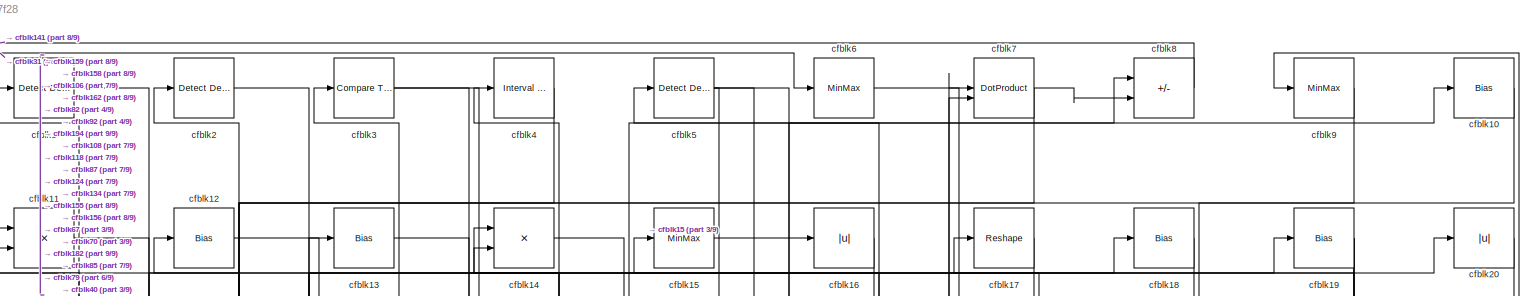
[diagram: root canvas - part 1/9, full width, top band]
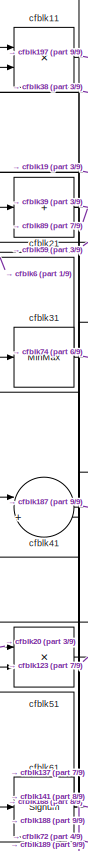
[diagram: root canvas - part 2/9, top left region]
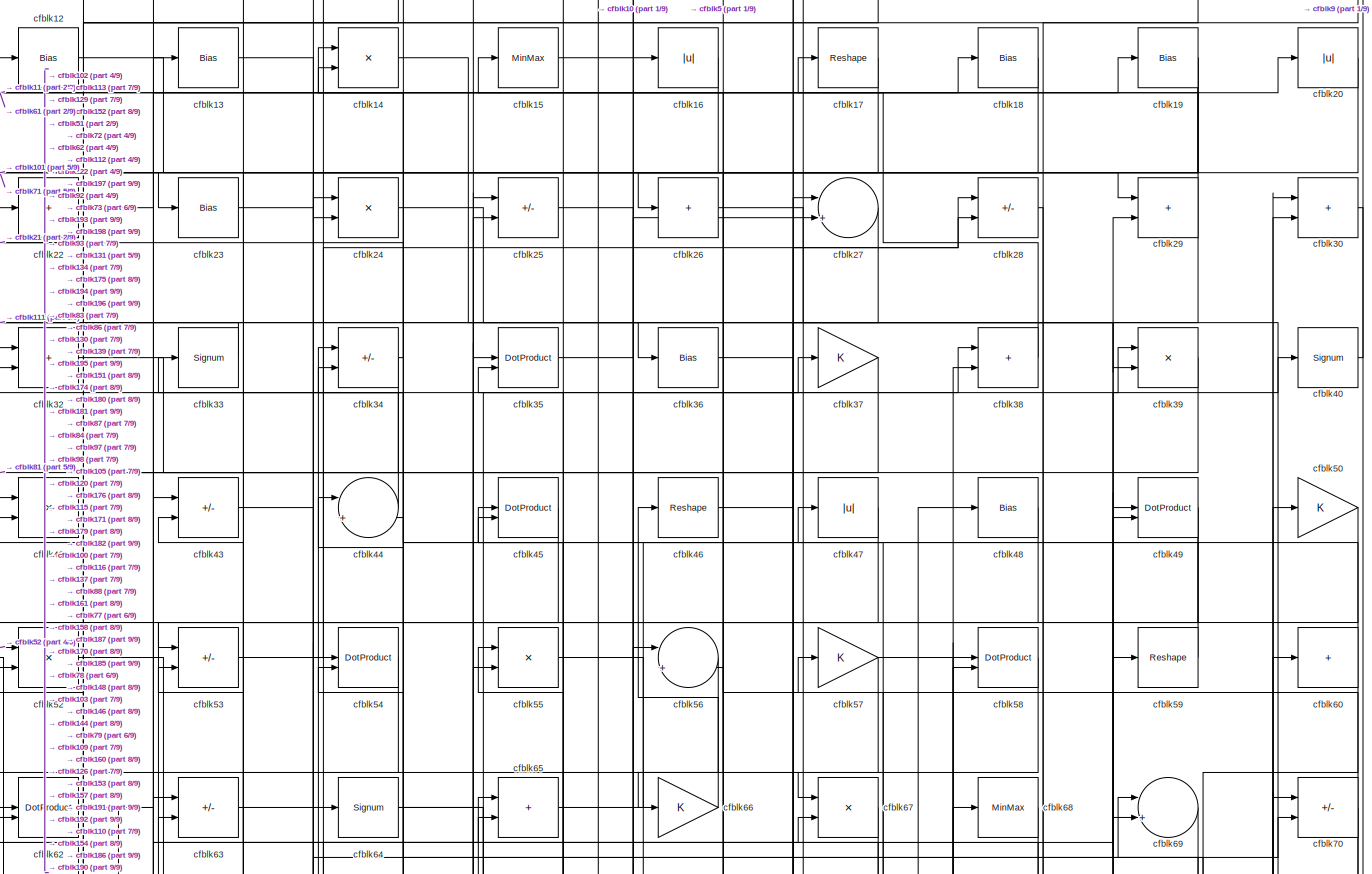
[diagram: root canvas - part 3/9, full width, top band]
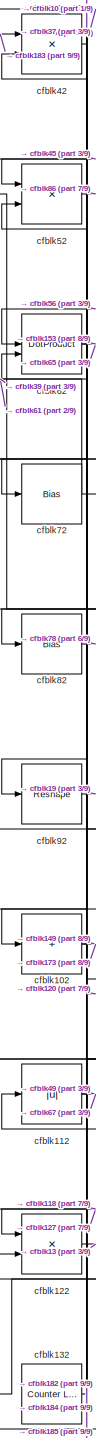
[diagram: root canvas - part 4/9, middle left region]
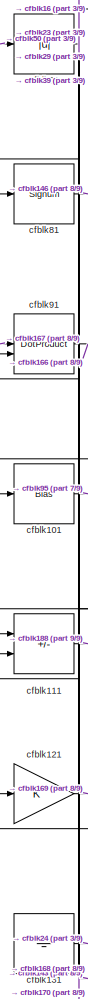
[diagram: root canvas - part 5/9, middle left region]
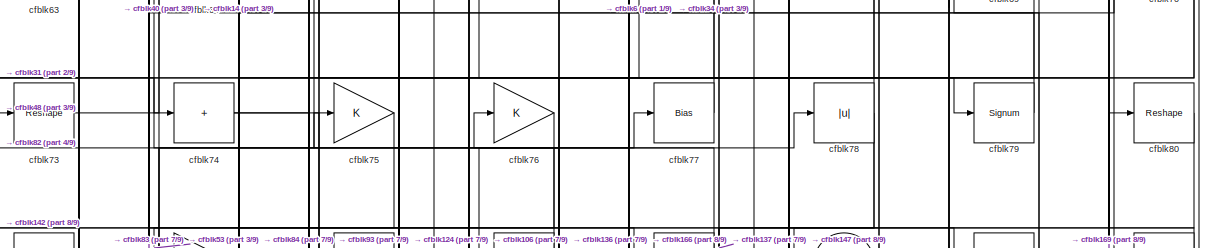
[diagram: root canvas - part 6/9, full width, middle band]
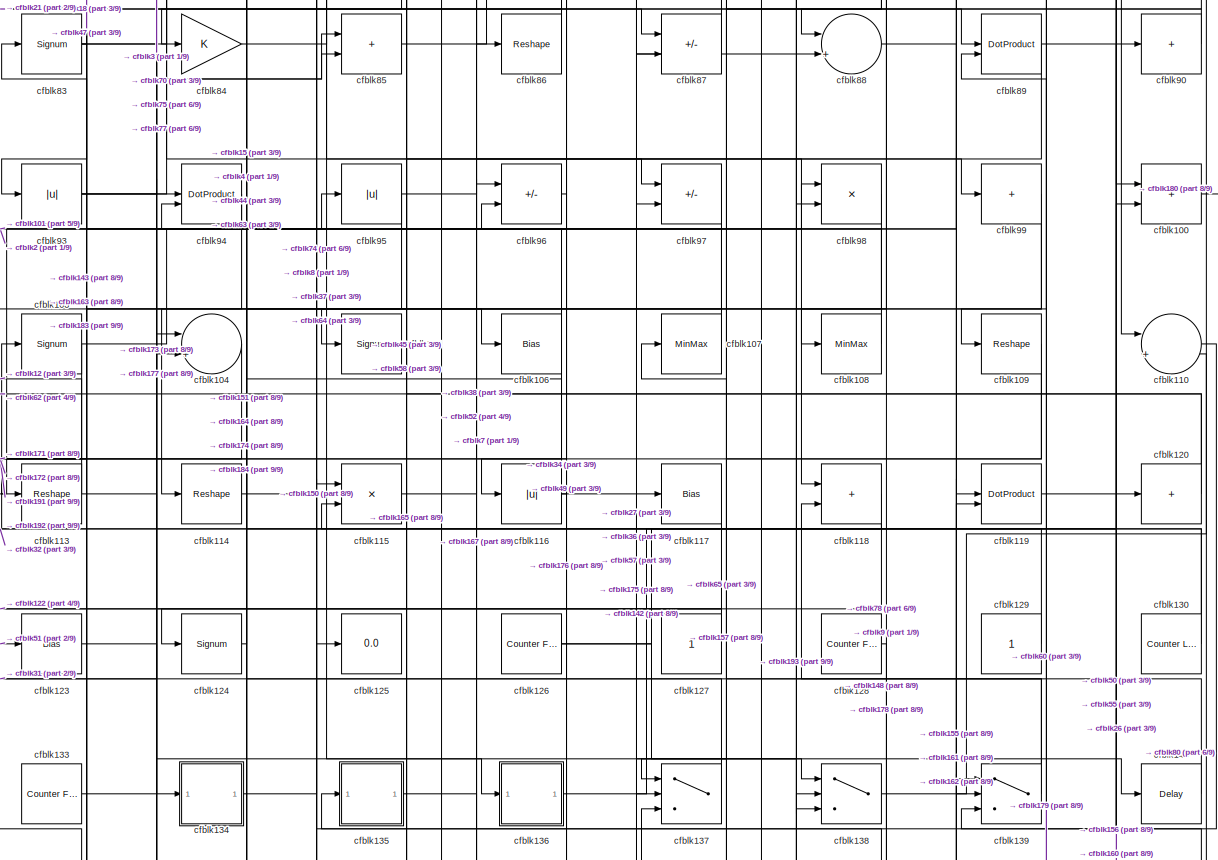
[diagram: root canvas - part 7/9, full width, middle band]
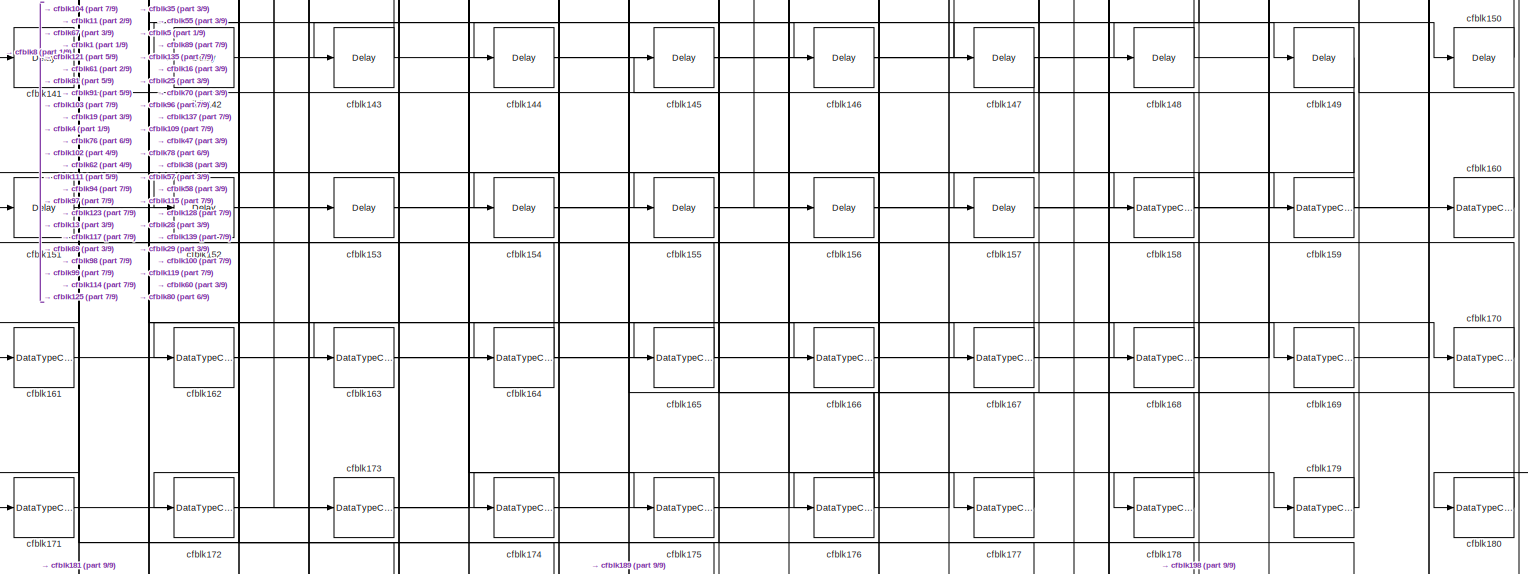
[diagram: root canvas - part 8/9, full width, bottom band]
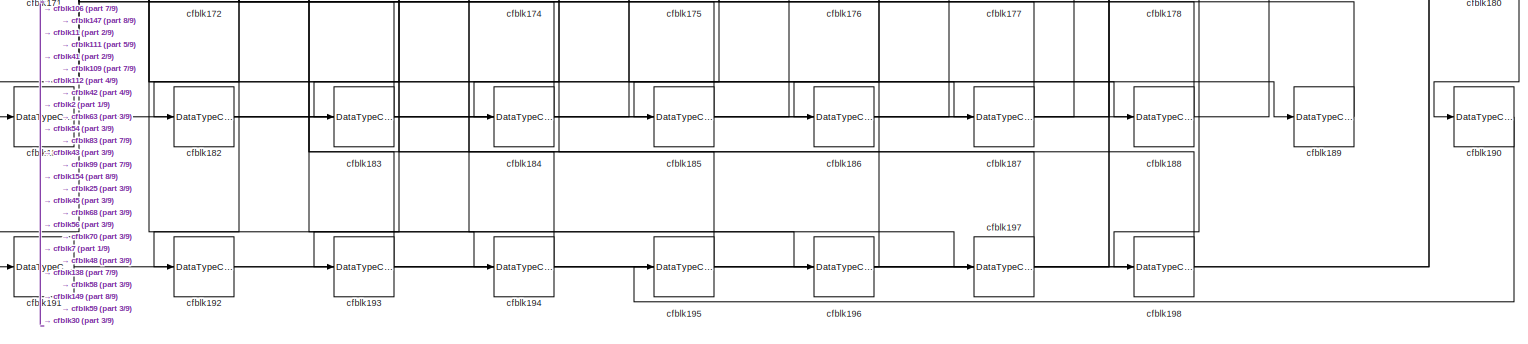
[diagram: root canvas - part 9/9, full width, bottom band]
MODEL slx_633baff17f28
KIND model
CONFIG AbsTol = auto
CONFIG EnableMultiTasking = off
CONFIG FixedStep = auto
CONFIG MaxStep = auto
CONFIG MinStep = auto
CONFIG RelTol = 1e-3
CONFIG SampleTimeConstraint = Unconstrained
CONFIG SolverName = VariableStepAuto
CONFIG StartTime = 0.0
CONFIG StopTime = 10.0
BLOCK [Reference] cfblk1  REF=simulink/Logic and Bit
Operations/Detect
Decrease
  LibrarySourceBlock = hdlsllib/Logic and Bit\nOperations/Detect\nDecrease
  SourceBlock = simulink/Logic and Bit\nOperations/Detect\nDecrease
  SourceType = Detect Decrease
BLOCK [Bias] cfblk10
  Bias = 0.0
  SaturateOnIntegerOverflow = off
BLOCK [Sum] cfblk100
  IconShape = rectangular
BLOCK [Bias] cfblk101
  Bias = 0.0
  SaturateOnIntegerOverflow = off
BLOCK [Sum] cfblk102
  IconShape = rectangular
  Inputs = +
BLOCK [Signum] cfblk103
BLOCK [Sum] cfblk104
  Inputs = |++
BLOCK [Signum] cfblk105
BLOCK [Bias] cfblk106
  Bias = 0.0
  SaturateOnIntegerOverflow = off
BLOCK [MinMax] cfblk107
BLOCK [MinMax] cfblk108
BLOCK [Reshape] cfblk109
BLOCK [Product] cfblk11
  Inputs = */
  RndMeth = Zero
  SaturateOnIntegerOverflow = on
BLOCK [Sum] cfblk110
  Inputs = |++
BLOCK [Sum] cfblk111
  IconShape = rectangular
  Inputs = +-
BLOCK [Abs] cfblk112
  SaturateOnIntegerOverflow = off
BLOCK [Reshape] cfblk113
BLOCK [Reshape] cfblk114
BLOCK [Product] cfblk115
  Inputs = */
  RndMeth = Zero
  SaturateOnIntegerOverflow = on
BLOCK [Abs] cfblk116
  SaturateOnIntegerOverflow = off
BLOCK [Bias] cfblk117
  Bias = 0.0
  SaturateOnIntegerOverflow = off
BLOCK [Sum] cfblk118
  IconShape = rectangular
BLOCK [DotProduct] cfblk119
  OutDataTypeStr = Inherit: Inherit via internal rule
BLOCK [Bias] cfblk12
  Bias = 0.0
  SaturateOnIntegerOverflow = off
BLOCK [Sum] cfblk120
  IconShape = rectangular
  Inputs = +
BLOCK [Gain] cfblk121
BLOCK [Product] cfblk122
  Inputs = */
  RndMeth = Zero
  SaturateOnIntegerOverflow = on
BLOCK [Bias] cfblk123
  Bias = 0.0
  SaturateOnIntegerOverflow = off
BLOCK [Signum] cfblk124
BLOCK [Display] cfblk125
  Decimation = 1
BLOCK [Reference] cfblk126  REF=hdlsllib/Sources/Counter
Free-Running
  SourceBlock = hdlsllib/Sources/Counter\nFree-Running
  SourceType = Counter Free-Running
BLOCK [Constant] cfblk127
  SampleTime = -1
BLOCK [Reference] cfblk128  REF=hdlsllib/Sources/Counter
Free-Running
  SourceBlock = hdlsllib/Sources/Counter\nFree-Running
  SourceType = Counter Free-Running
BLOCK [Constant] cfblk129
  SampleTime = -1
BLOCK [Bias] cfblk13
  Bias = 0.0
  SaturateOnIntegerOverflow = off
BLOCK [Reference] cfblk130  REF=hdlsllib/Sources/Counter
Limited
  SourceBlock = hdlsllib/Sources/Counter\nLimited
  SourceType = Counter Limited
BLOCK [Ground] cfblk131
BLOCK [Reference] cfblk132  REF=hdlsllib/Sources/Counter
Limited
  SourceBlock = hdlsllib/Sources/Counter\nLimited
  SourceType = Counter Limited
BLOCK [Reference] cfblk133  REF=hdlsllib/Sources/Counter
Free-Running
  SourceBlock = hdlsllib/Sources/Counter\nFree-Running
  SourceType = Counter Free-Running
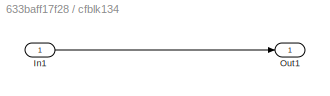
BLOCK [SubSystem] cfblk134
  LibrarySourceBlock = hdlsllib/Ports &\nSubsystems/Subsystem
BLOCK [Inport] cfblk134/In1
BLOCK [Outport] cfblk134/Out1
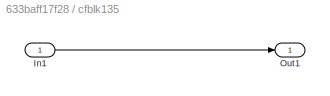
BLOCK [SubSystem] cfblk135
  LibrarySourceBlock = hdlsllib/Ports &\nSubsystems/Subsystem
BLOCK [Inport] cfblk135/In1
BLOCK [Outport] cfblk135/Out1
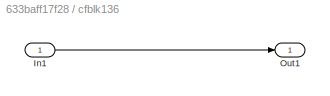
BLOCK [SubSystem] cfblk136
  LibrarySourceBlock = hdlsllib/Ports &\nSubsystems/Subsystem
BLOCK [Inport] cfblk136/In1
BLOCK [Outport] cfblk136/Out1
BLOCK [Switch] cfblk137
  InputSameDT = off
  SaturateOnIntegerOverflow = off
BLOCK [Switch] cfblk138
  InputSameDT = off
  SaturateOnIntegerOverflow = off
BLOCK [Switch] cfblk139
  InputSameDT = off
  SaturateOnIntegerOverflow = off
BLOCK [Product] cfblk14
  Inputs = */
  RndMeth = Zero
  SaturateOnIntegerOverflow = on
BLOCK [Delay] cfblk140
  InputPortMap = u0
  SampleTime = 1
BLOCK [Delay] cfblk141
  InputPortMap = u0
  SampleTime = 1
BLOCK [Delay] cfblk142
  InputPortMap = u0
  SampleTime = 1
BLOCK [Delay] cfblk143
  InputPortMap = u0
  SampleTime = 1
BLOCK [Delay] cfblk144
  InputPortMap = u0
  SampleTime = 1
BLOCK [Delay] cfblk145
  InputPortMap = u0
  SampleTime = 1
BLOCK [Delay] cfblk146
  InputPortMap = u0
  SampleTime = 1
BLOCK [Delay] cfblk147
  InputPortMap = u0
  SampleTime = 1
BLOCK [Delay] cfblk148
  InputPortMap = u0
  SampleTime = 1
BLOCK [Delay] cfblk149
  InputPortMap = u0
  SampleTime = 1
BLOCK [MinMax] cfblk15
BLOCK [Delay] cfblk150
  InputPortMap = u0
  SampleTime = 1
BLOCK [Delay] cfblk151
  InputPortMap = u0
  SampleTime = 1
BLOCK [Delay] cfblk152
  InputPortMap = u0
  SampleTime = 1
BLOCK [Delay] cfblk153
  InputPortMap = u0
  SampleTime = 1
BLOCK [Delay] cfblk154
  InputPortMap = u0
  SampleTime = 1
BLOCK [Delay] cfblk155
  InputPortMap = u0
  SampleTime = 1
BLOCK [Delay] cfblk156
  InputPortMap = u0
  SampleTime = 1
BLOCK [Delay] cfblk157
  InputPortMap = u0
  SampleTime = 1
BLOCK [DataTypeConversion] cfblk158
  OutDataTypeStr = uint8
  RndMeth = Floor
  SaturateOnIntegerOverflow = off
BLOCK [DataTypeConversion] cfblk159
  OutDataTypeStr = uint8
  RndMeth = Floor
  SaturateOnIntegerOverflow = off
BLOCK [Abs] cfblk16
  SaturateOnIntegerOverflow = off
BLOCK [DataTypeConversion] cfblk160
  OutDataTypeStr = uint8
  RndMeth = Floor
  SaturateOnIntegerOverflow = off
BLOCK [DataTypeConversion] cfblk161
  OutDataTypeStr = uint8
  RndMeth = Floor
  SaturateOnIntegerOverflow = off
BLOCK [DataTypeConversion] cfblk162
  OutDataTypeStr = uint8
  RndMeth = Floor
  SaturateOnIntegerOverflow = off
BLOCK [DataTypeConversion] cfblk163
  OutDataTypeStr = uint8
  RndMeth = Floor
  SaturateOnIntegerOverflow = off
BLOCK [DataTypeConversion] cfblk164
  OutDataTypeStr = uint8
  RndMeth = Floor
  SaturateOnIntegerOverflow = off
BLOCK [DataTypeConversion] cfblk165
  OutDataTypeStr = uint8
  RndMeth = Floor
  SaturateOnIntegerOverflow = off
BLOCK [DataTypeConversion] cfblk166
  OutDataTypeStr = uint8
  RndMeth = Floor
  SaturateOnIntegerOverflow = off
BLOCK [DataTypeConversion] cfblk167
  OutDataTypeStr = uint8
  RndMeth = Floor
  SaturateOnIntegerOverflow = off
BLOCK [DataTypeConversion] cfblk168
  OutDataTypeStr = uint8
  RndMeth = Floor
  SaturateOnIntegerOverflow = off
BLOCK [DataTypeConversion] cfblk169
  OutDataTypeStr = uint8
  RndMeth = Floor
  SaturateOnIntegerOverflow = off
BLOCK [Reshape] cfblk17
BLOCK [DataTypeConversion] cfblk170
  OutDataTypeStr = uint8
  RndMeth = Floor
  SaturateOnIntegerOverflow = off
BLOCK [DataTypeConversion] cfblk171
  OutDataTypeStr = uint8
  RndMeth = Floor
  SaturateOnIntegerOverflow = off
BLOCK [DataTypeConversion] cfblk172
  OutDataTypeStr = uint8
  RndMeth = Floor
  SaturateOnIntegerOverflow = off
BLOCK [DataTypeConversion] cfblk173
  OutDataTypeStr = uint8
  RndMeth = Floor
  SaturateOnIntegerOverflow = off
BLOCK [DataTypeConversion] cfblk174
  OutDataTypeStr = uint8
  RndMeth = Floor
  SaturateOnIntegerOverflow = off
BLOCK [DataTypeConversion] cfblk175
  OutDataTypeStr = uint8
  RndMeth = Floor
  SaturateOnIntegerOverflow = off
BLOCK [DataTypeConversion] cfblk176
  RndMeth = Floor
  SaturateOnIntegerOverflow = off
BLOCK [DataTypeConversion] cfblk177
  OutDataTypeStr = uint8
  RndMeth = Floor
  SaturateOnIntegerOverflow = off
BLOCK [DataTypeConversion] cfblk178
  OutDataTypeStr = uint8
  RndMeth = Floor
  SaturateOnIntegerOverflow = off
BLOCK [DataTypeConversion] cfblk179
  RndMeth = Floor
  SaturateOnIntegerOverflow = off
BLOCK [Bias] cfblk18
  Bias = 0.0
  SaturateOnIntegerOverflow = off
BLOCK [DataTypeConversion] cfblk180
  OutDataTypeStr = uint8
  RndMeth = Floor
  SaturateOnIntegerOverflow = off
BLOCK [DataTypeConversion] cfblk181
  OutDataTypeStr = uint8
  RndMeth = Floor
  SaturateOnIntegerOverflow = off
BLOCK [DataTypeConversion] cfblk182
  RndMeth = Floor
  SaturateOnIntegerOverflow = off
BLOCK [DataTypeConversion] cfblk183
  OutDataTypeStr = uint8
  RndMeth = Floor
  SaturateOnIntegerOverflow = off
BLOCK [DataTypeConversion] cfblk184
  OutDataTypeStr = uint8
  RndMeth = Floor
  SaturateOnIntegerOverflow = off
BLOCK [DataTypeConversion] cfblk185
  RndMeth = Floor
  SaturateOnIntegerOverflow = off
BLOCK [DataTypeConversion] cfblk186
  OutDataTypeStr = uint8
  RndMeth = Floor
  SaturateOnIntegerOverflow = off
BLOCK [DataTypeConversion] cfblk187
  RndMeth = Floor
  SaturateOnIntegerOverflow = off
BLOCK [DataTypeConversion] cfblk188
  OutDataTypeStr = uint8
  RndMeth = Floor
  SaturateOnIntegerOverflow = off
BLOCK [DataTypeConversion] cfblk189
  OutDataTypeStr = uint8
  RndMeth = Floor
  SaturateOnIntegerOverflow = off
BLOCK [Bias] cfblk19
  Bias = 0.0
  SaturateOnIntegerOverflow = off
BLOCK [DataTypeConversion] cfblk190
  OutDataTypeStr = uint8
  RndMeth = Floor
  SaturateOnIntegerOverflow = off
BLOCK [DataTypeConversion] cfblk191
  OutDataTypeStr = uint8
  RndMeth = Floor
  SaturateOnIntegerOverflow = off
BLOCK [DataTypeConversion] cfblk192
  OutDataTypeStr = uint8
  RndMeth = Floor
  SaturateOnIntegerOverflow = off
BLOCK [DataTypeConversion] cfblk193
  RndMeth = Floor
  SaturateOnIntegerOverflow = off
BLOCK [DataTypeConversion] cfblk194
  OutDataTypeStr = uint8
  RndMeth = Floor
  SaturateOnIntegerOverflow = off
BLOCK [DataTypeConversion] cfblk195
  OutDataTypeStr = uint8
  RndMeth = Floor
  SaturateOnIntegerOverflow = off
BLOCK [DataTypeConversion] cfblk196
  RndMeth = Floor
  SaturateOnIntegerOverflow = off
BLOCK [DataTypeConversion] cfblk197
  OutDataTypeStr = uint8
  RndMeth = Floor
  SaturateOnIntegerOverflow = off
BLOCK [DataTypeConversion] cfblk198
  OutDataTypeStr = uint8
  RndMeth = Floor
  SaturateOnIntegerOverflow = off
BLOCK [Reference] cfblk2  REF=simulink/Logic and Bit
Operations/Detect
Decrease
  LibrarySourceBlock = hdlsllib/Logic and Bit\nOperations/Detect\nDecrease
  SourceBlock = simulink/Logic and Bit\nOperations/Detect\nDecrease
  SourceType = Detect Decrease
BLOCK [Abs] cfblk20
  SaturateOnIntegerOverflow = off
BLOCK [Sum] cfblk21
  IconShape = rectangular
  Inputs = +
BLOCK [Sum] cfblk22
  IconShape = rectangular
  Inputs = +
BLOCK [Bias] cfblk23
  Bias = 0.0
  SaturateOnIntegerOverflow = off
BLOCK [Product] cfblk24
  Inputs = */
  RndMeth = Zero
  SaturateOnIntegerOverflow = on
BLOCK [Sum] cfblk25
  IconShape = rectangular
  Inputs = +-
BLOCK [Sum] cfblk26
  IconShape = rectangular
  Inputs = +
BLOCK [Sum] cfblk27
  Inputs = |++
BLOCK [Sum] cfblk28
  IconShape = rectangular
  Inputs = +-
BLOCK [Sum] cfblk29
  IconShape = rectangular
BLOCK [Reference] cfblk3  REF=hdlsllib/Logic and Bit
Operations/Compare
To Zero
  SourceBlock = hdlsllib/Logic and Bit\nOperations/Compare\nTo Zero
  SourceType = Compare To Zero
BLOCK [Sum] cfblk30
  IconShape = rectangular
BLOCK [MinMax] cfblk31
BLOCK [Sum] cfblk32
  IconShape = rectangular
BLOCK [Signum] cfblk33
BLOCK [Sum] cfblk34
  IconShape = rectangular
  Inputs = +-
BLOCK [DotProduct] cfblk35
  OutDataTypeStr = Inherit: Inherit via internal rule
BLOCK [Bias] cfblk36
  Bias = 0.0
  SaturateOnIntegerOverflow = off
BLOCK [Gain] cfblk37
BLOCK [Sum] cfblk38
  IconShape = rectangular
BLOCK [Product] cfblk39
  Inputs = */
  RndMeth = Zero
  SaturateOnIntegerOverflow = on
BLOCK [Reference] cfblk4  REF=hdlsllib/Logic and Bit
Operations/Interval Test
  SourceBlock = hdlsllib/Logic and Bit\nOperations/Interval Test
  SourceType = Interval Test
BLOCK [Signum] cfblk40
BLOCK [Sum] cfblk41
  Inputs = |++
BLOCK [Product] cfblk42
  Inputs = */
  RndMeth = Zero
  SaturateOnIntegerOverflow = on
BLOCK [Sum] cfblk43
  IconShape = rectangular
  Inputs = +-
BLOCK [Sum] cfblk44
  Inputs = |++
BLOCK [DotProduct] cfblk45
  OutDataTypeStr = Inherit: Inherit via internal rule
BLOCK [Reshape] cfblk46
BLOCK [Abs] cfblk47
  SaturateOnIntegerOverflow = off
BLOCK [Bias] cfblk48
  Bias = 0.0
  SaturateOnIntegerOverflow = off
BLOCK [DotProduct] cfblk49
  OutDataTypeStr = Inherit: Inherit via internal rule
BLOCK [Reference] cfblk5  REF=simulink/Logic and Bit
Operations/Detect
Decrease
  LibrarySourceBlock = hdlsllib/Logic and Bit\nOperations/Detect\nDecrease
  SourceBlock = simulink/Logic and Bit\nOperations/Detect\nDecrease
  SourceType = Detect Decrease
BLOCK [Gain] cfblk50
BLOCK [Product] cfblk51
  Inputs = */
  RndMeth = Zero
  SaturateOnIntegerOverflow = on
BLOCK [Product] cfblk52
  Inputs = */
  RndMeth = Zero
  SaturateOnIntegerOverflow = on
BLOCK [Sum] cfblk53
  IconShape = rectangular
  Inputs = +-
BLOCK [DotProduct] cfblk54
  OutDataTypeStr = Inherit: Inherit via internal rule
BLOCK [Product] cfblk55
  Inputs = */
  RndMeth = Zero
  SaturateOnIntegerOverflow = on
BLOCK [Sum] cfblk56
  Inputs = |++
BLOCK [Gain] cfblk57
BLOCK [DotProduct] cfblk58
  OutDataTypeStr = Inherit: Inherit via internal rule
BLOCK [Reshape] cfblk59
BLOCK [MinMax] cfblk6
BLOCK [Sum] cfblk60
  IconShape = rectangular
  Inputs = +
BLOCK [Signum] cfblk61
BLOCK [DotProduct] cfblk62
  OutDataTypeStr = Inherit: Inherit via internal rule
BLOCK [Sum] cfblk63
  IconShape = rectangular
  Inputs = +-
BLOCK [Signum] cfblk64
BLOCK [Sum] cfblk65
  IconShape = rectangular
BLOCK [Gain] cfblk66
BLOCK [Product] cfblk67
  Inputs = */
  RndMeth = Zero
  SaturateOnIntegerOverflow = on
BLOCK [MinMax] cfblk68
BLOCK [Sum] cfblk69
  Inputs = |++
BLOCK [DotProduct] cfblk7
  OutDataTypeStr = Inherit: Inherit via internal rule
BLOCK [Sum] cfblk70
  IconShape = rectangular
  Inputs = +-
BLOCK [Abs] cfblk71
  SaturateOnIntegerOverflow = off
BLOCK [Bias] cfblk72
  Bias = 0.0
  SaturateOnIntegerOverflow = off
BLOCK [Reshape] cfblk73
BLOCK [Sum] cfblk74
  IconShape = rectangular
  Inputs = +
BLOCK [Gain] cfblk75
BLOCK [Gain] cfblk76
BLOCK [Bias] cfblk77
  Bias = 0.0
  SaturateOnIntegerOverflow = off
BLOCK [Abs] cfblk78
  SaturateOnIntegerOverflow = off
BLOCK [Signum] cfblk79
BLOCK [Sum] cfblk8
  IconShape = rectangular
  Inputs = +-
BLOCK [Reshape] cfblk80
BLOCK [Signum] cfblk81
BLOCK [Bias] cfblk82
  Bias = 0.0
  SaturateOnIntegerOverflow = off
BLOCK [Signum] cfblk83
BLOCK [Gain] cfblk84
BLOCK [Sum] cfblk85
  IconShape = rectangular
BLOCK [Reshape] cfblk86
BLOCK [Sum] cfblk87
  IconShape = rectangular
  Inputs = +-
BLOCK [Sum] cfblk88
  Inputs = |++
BLOCK [DotProduct] cfblk89
  OutDataTypeStr = Inherit: Inherit via internal rule
BLOCK [MinMax] cfblk9
BLOCK [Sum] cfblk90
  IconShape = rectangular
  Inputs = +
BLOCK [DotProduct] cfblk91
  OutDataTypeStr = Inherit: Inherit via internal rule
BLOCK [Reshape] cfblk92
BLOCK [Abs] cfblk93
  SaturateOnIntegerOverflow = off
BLOCK [DotProduct] cfblk94
  OutDataTypeStr = Inherit: Inherit via internal rule
BLOCK [Abs] cfblk95
  SaturateOnIntegerOverflow = off
BLOCK [Sum] cfblk96
  IconShape = rectangular
  Inputs = +-
BLOCK [Sum] cfblk97
  IconShape = rectangular
  Inputs = +-
BLOCK [Product] cfblk98
  Inputs = */
  RndMeth = Zero
  SaturateOnIntegerOverflow = on
BLOCK [Sum] cfblk99
  IconShape = rectangular
  Inputs = +
LINE cfblk100:1 -> cfblk180:1
LINE cfblk101:1 -> cfblk95:1
NET cfblk102:1 -> cfblk149:1, cfblk173:1
NET cfblk103:1 -> cfblk172:1, cfblk49:2
LINE cfblk104:1 -> cfblk171:1
LINE cfblk105:1 -> cfblk55:1
NET cfblk106:1 -> cfblk191:1, cfblk2:1
LINE cfblk107:1 -> cfblk83:1
LINE cfblk108:1 -> cfblk3:1
NET cfblk109:1 -> cfblk157:1, cfblk192:1
LINE cfblk10:1 -> cfblk82:1
LINE cfblk110:1 -> cfblk135:1
LINE cfblk111:1 -> cfblk188:1
NET cfblk112:1 -> cfblk49:1, cfblk67:2
NET cfblk113:1 -> cfblk12:1, cfblk138:3
LINE cfblk114:1 -> cfblk150:1
LINE cfblk115:1 -> cfblk38:1
NET cfblk116:1 -> cfblk138:1, cfblk15:1, cfblk63:2
LINE cfblk117:1 -> cfblk174:1
NET cfblk118:1 -> cfblk115:2, cfblk122:2
LINE cfblk119:1 -> cfblk160:1
LINE cfblk11:1 -> cfblk197:1
NET cfblk120:1 -> cfblk45:1, cfblk62:2
LINE cfblk121:1 -> cfblk169:1
LINE cfblk122:1 -> cfblk13:1
LINE cfblk123:1 -> cfblk177:1
LINE cfblk124:1 -> cfblk4:1
NET cfblk126:1 -> cfblk139:2, cfblk50:1
LINE cfblk127:1 -> cfblk122:1
LINE cfblk128:1 -> cfblk178:1
LINE cfblk129:1 -> cfblk32:2
LINE cfblk12:1 -> cfblk29:1
NET cfblk130:1 -> cfblk103:1, cfblk44:1
LINE cfblk131:1 -> cfblk24:1
LINE cfblk132:1 -> cfblk52:2
LINE cfblk133:1 -> cfblk98:1
LINE cfblk134/In1:1 -> cfblk134/Out1:1
LINE cfblk134:1 -> cfblk8:1
LINE cfblk135/In1:1 -> cfblk135/Out1:1
LINE cfblk135:1 -> cfblk167:1
LINE cfblk136/In1:1 -> cfblk136/Out1:1
LINE cfblk136:1 -> cfblk90:1
LINE cfblk137:1 -> cfblk31:1
LINE cfblk138:1 -> cfblk110:2
NET cfblk139:1 -> cfblk107:1, cfblk44:2
LINE cfblk13:1 -> cfblk175:1
LINE cfblk140:1 -> cfblk118:2
LINE cfblk141:1 -> cfblk11:2
LINE cfblk142:1 -> cfblk137:3
LINE cfblk143:1 -> cfblk111:2
LINE cfblk144:1 -> cfblk38:2
LINE cfblk145:1 -> cfblk159:1
LINE cfblk146:1 -> cfblk29:2
LINE cfblk147:1 -> cfblk181:1
LINE cfblk148:1 -> cfblk115:1
LINE cfblk149:1 -> cfblk198:1
LINE cfblk14:1 -> cfblk36:1
LINE cfblk150:1 -> cfblk89:2
LINE cfblk151:1 -> cfblk55:2
LINE cfblk152:1 -> cfblk58:2
LINE cfblk153:1 -> cfblk70:1
LINE cfblk154:1 -> cfblk189:1
LINE cfblk155:1 -> cfblk139:1
LINE cfblk156:1 -> cfblk100:2
LINE cfblk157:1 -> cfblk60:1
LINE cfblk158:1 -> cfblk47:1
LINE cfblk159:1 -> cfblk1:1
LINE cfblk15:1 -> cfblk10:1
LINE cfblk160:1 -> cfblk69:1
LINE cfblk161:1 -> cfblk119:1
LINE cfblk162:1 -> cfblk119:2
LINE cfblk163:1 -> cfblk125:1
LINE cfblk164:1 -> cfblk94:1
LINE cfblk165:1 -> cfblk94:2
LINE cfblk166:1 -> cfblk76:1
LINE cfblk167:1 -> cfblk91:1
LINE cfblk168:1 -> cfblk91:2
LINE cfblk169:1 -> cfblk80:1
LINE cfblk16:1 -> cfblk101:1
LINE cfblk170:1 -> cfblk121:1
LINE cfblk171:1 -> cfblk16:1
LINE cfblk172:1 -> cfblk104:1
LINE cfblk173:1 -> cfblk104:2
LINE cfblk174:1 -> cfblk35:1
LINE cfblk175:1 -> cfblk117:1
NET cfblk176:1 -> cfblk145:1, cfblk35:2
LINE cfblk177:1 -> cfblk96:1
LINE cfblk178:1 -> cfblk96:2
NET cfblk179:1 -> cfblk139:3, cfblk57:1
LINE cfblk17:1 -> cfblk24:2
LINE cfblk180:1 -> cfblk25:1
LINE cfblk181:1 -> cfblk25:2
NET cfblk182:1 -> cfblk56:1, cfblk7:2
LINE cfblk183:1 -> cfblk42:1
LINE cfblk184:1 -> cfblk42:2
NET cfblk185:1 -> cfblk112:1, cfblk59:1
LINE cfblk186:1 -> cfblk68:1
NET cfblk187:1 -> cfblk45:2, cfblk48:1
LINE cfblk188:1 -> cfblk41:1
LINE cfblk189:1 -> cfblk41:2
LINE cfblk18:1 -> cfblk93:1
LINE cfblk190:1 -> cfblk195:1
LINE cfblk191:1 -> cfblk30:1
LINE cfblk192:1 -> cfblk30:2
NET cfblk193:1 -> cfblk138:2, cfblk63:1
LINE cfblk194:1 -> cfblk54:1
LINE cfblk195:1 -> cfblk54:2
NET cfblk196:1 -> cfblk56:2, cfblk58:1
LINE cfblk197:1 -> cfblk43:1
LINE cfblk198:1 -> cfblk43:2
NET cfblk19:1 -> cfblk152:1, cfblk51:2, cfblk66:1
LINE cfblk1:1 -> cfblk158:1
LINE cfblk20:1 -> cfblk26:1
NET cfblk21:1 -> cfblk39:2, cfblk89:1
LINE cfblk22:1 -> cfblk18:1
LINE cfblk23:1 -> cfblk64:1
LINE cfblk24:1 -> cfblk69:2
LINE cfblk25:1 -> cfblk179:1
LINE cfblk26:1 -> cfblk110:1
LINE cfblk27:1 -> cfblk97:2
LINE cfblk28:1 -> cfblk148:1
NET cfblk29:1 -> cfblk111:1, cfblk17:1
LINE cfblk2:1 -> cfblk194:1
LINE cfblk30:1 -> cfblk190:1
NET cfblk31:1 -> cfblk6:1, cfblk74:1
LINE cfblk32:1 -> cfblk137:2
LINE cfblk33:1 -> cfblk32:1
NET cfblk34:1 -> cfblk102:1, cfblk14:2
LINE cfblk35:1 -> cfblk27:2
LINE cfblk36:1 -> cfblk88:2
LINE cfblk37:1 -> cfblk72:1
LINE cfblk38:1 -> cfblk11:1
LINE cfblk39:1 -> cfblk81:1
NET cfblk3:1 -> cfblk118:1, cfblk87:1
LINE cfblk40:1 -> cfblk9:1
LINE cfblk41:1 -> cfblk187:1
LINE cfblk42:1 -> cfblk182:1
LINE cfblk43:1 -> cfblk196:1
LINE cfblk44:1 -> cfblk22:1
LINE cfblk45:1 -> cfblk52:1
LINE cfblk46:1 -> cfblk28:2
LINE cfblk47:1 -> cfblk113:1
LINE cfblk48:1 -> cfblk73:1
NET cfblk49:1 -> cfblk116:1, cfblk53:1
LINE cfblk4:1 -> cfblk162:1
LINE cfblk50:1 -> cfblk71:1
LINE cfblk51:1 -> cfblk123:1
LINE cfblk52:1 -> cfblk86:1
LINE cfblk53:1 -> cfblk28:1
LINE cfblk54:1 -> cfblk193:1
LINE cfblk55:1 -> cfblk100:1
LINE cfblk56:1 -> cfblk62:1
NET cfblk57:1 -> cfblk170:1, cfblk87:2
LINE cfblk58:1 -> cfblk105:1
LINE cfblk59:1 -> cfblk21:1
NET cfblk5:1 -> cfblk155:1, cfblk156:1, cfblk67:1
NET cfblk60:1 -> cfblk109:1, cfblk33:1
NET cfblk61:1 -> cfblk168:1, cfblk20:1, cfblk51:1
NET cfblk62:1 -> cfblk153:1, cfblk65:2
LINE cfblk63:1 -> cfblk134:1
NET cfblk64:1 -> cfblk97:1, cfblk98:2
LINE cfblk65:1 -> cfblk27:1
LINE cfblk66:1 -> cfblk46:1
LINE cfblk67:1 -> cfblk161:1
LINE cfblk68:1 -> cfblk185:1
LINE cfblk69:1 -> cfblk144:1
LINE cfblk6:1 -> cfblk79:1
NET cfblk70:1 -> cfblk154:1, cfblk186:1, cfblk5:1
LINE cfblk71:1 -> cfblk23:1
NET cfblk72:1 -> cfblk39:1, cfblk61:1
LINE cfblk73:1 -> cfblk40:1
NET cfblk74:1 -> cfblk106:1, cfblk136:1
LINE cfblk75:1 -> cfblk124:1
LINE cfblk76:1 -> cfblk142:1
LINE cfblk77:1 -> cfblk34:2
NET cfblk78:1 -> cfblk147:1, cfblk53:2, cfblk84:1
LINE cfblk79:1 -> cfblk14:1
NET cfblk7:1 -> cfblk8:2, cfblk92:1
LINE cfblk80:1 -> cfblk137:1
LINE cfblk81:1 -> cfblk146:1
LINE cfblk82:1 -> cfblk78:1
NET cfblk83:1 -> cfblk183:1, cfblk70:2, cfblk75:1
LINE cfblk84:1 -> cfblk37:1
LINE cfblk85:1 -> cfblk7:1
LINE cfblk86:1 -> cfblk34:1
LINE cfblk87:1 -> cfblk65:1
LINE cfblk88:1 -> cfblk140:1
NET cfblk89:1 -> cfblk120:1, cfblk165:1
LINE cfblk8:1 -> cfblk141:1
LINE cfblk90:1 -> cfblk88:1
LINE cfblk91:1 -> cfblk166:1
LINE cfblk92:1 -> cfblk19:1
NET cfblk93:1 -> cfblk77:1, cfblk85:1, cfblk85:2
LINE cfblk94:1 -> cfblk163:1
NET cfblk95:1 -> cfblk114:1, cfblk99:1
LINE cfblk96:1 -> cfblk176:1
LINE cfblk97:1 -> cfblk143:1
LINE cfblk98:1 -> cfblk164:1
NET cfblk99:1 -> cfblk151:1, cfblk184:1
LINE cfblk9:1 -> cfblk108:1
note: NET lines group one-source signal fan-out (src -> all destinations, sorted); 1:1 wires keep LINE
